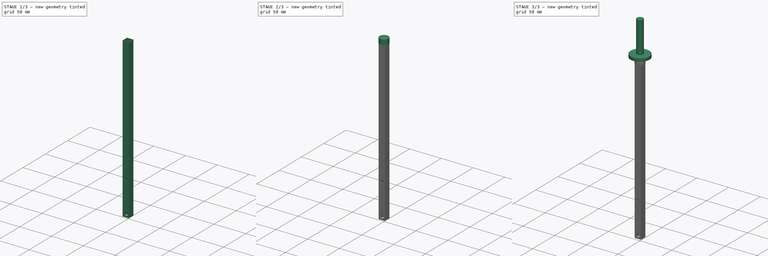
[diagram: build sequence overview — one tinted view per stage of 3, left to right]
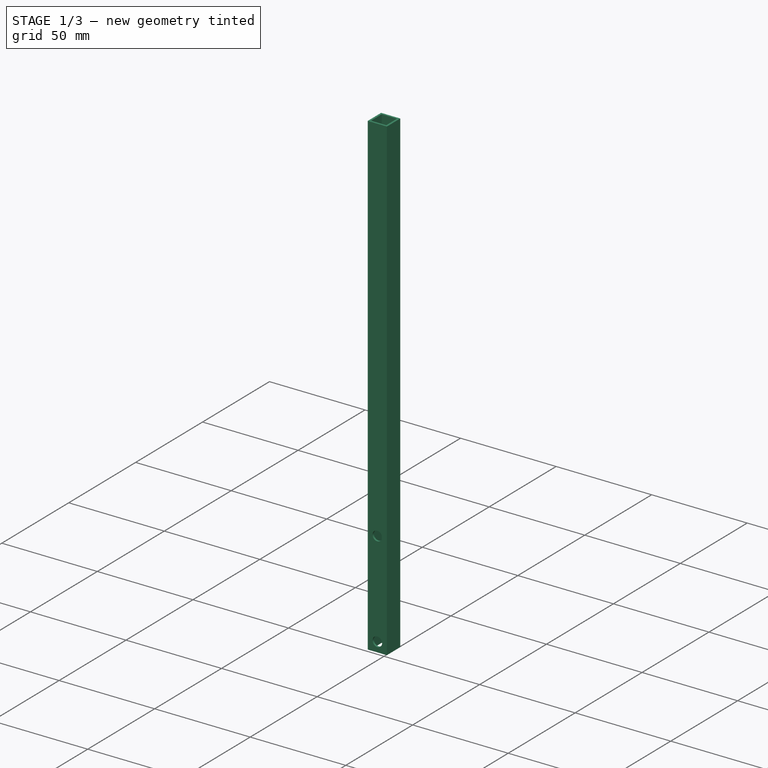
[diagram: stage 1 of 3 — iso view after this stage's code; geometry added in this stage tinted green]
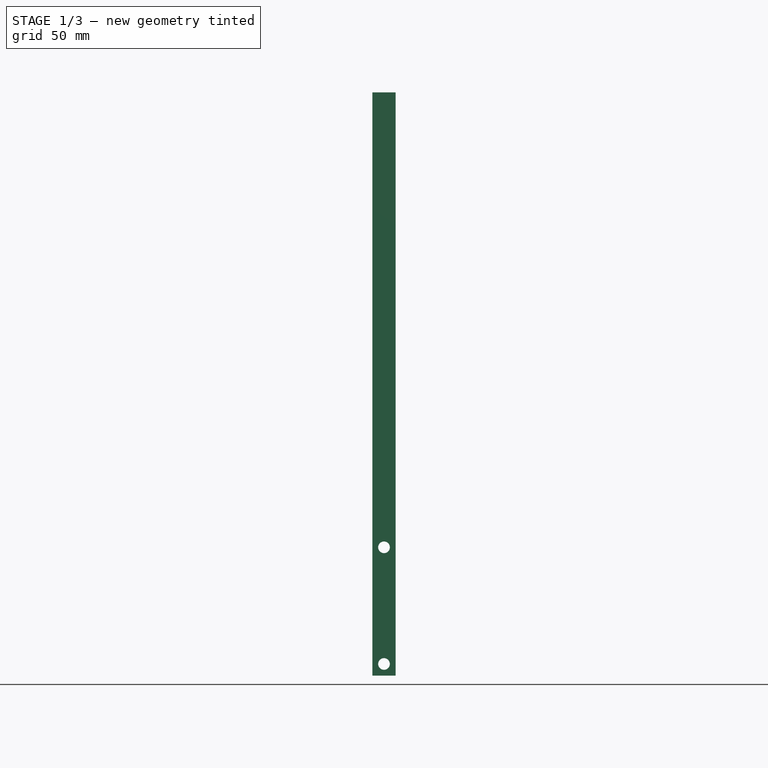
[diagram: stage 1 of 3 — front view after this stage's code; geometry added in this stage tinted green]
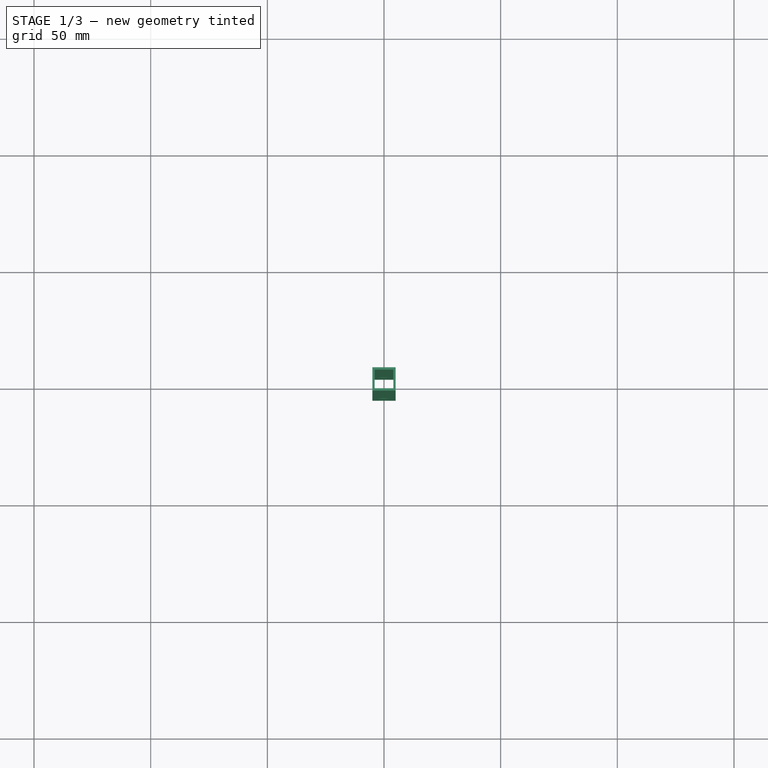
[diagram: stage 1 of 3 — top view after this stage's code; geometry added in this stage tinted green]
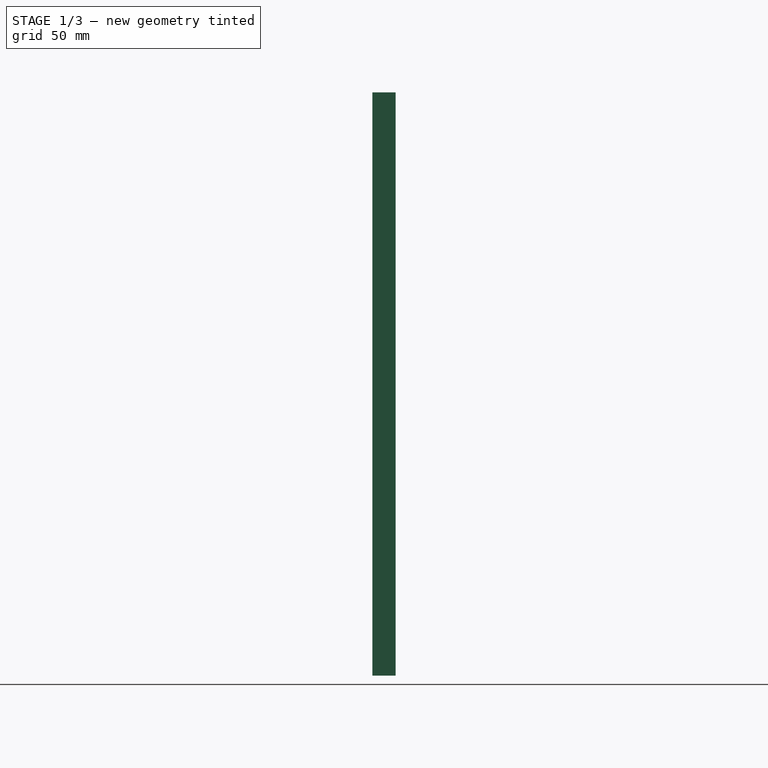
[diagram: stage 1 of 3 — right view after this stage's code; geometry added in this stage tinted green]
FCSTD DOCUMENT  (FreeCAD 0.18R)
Label: femur
License: All rights reserved
LicenseURL: http://en.wikipedia.org/wiki/All_rights_reserved
objects: Sketcher::SketchObject×6, PartDesign::Pad×5, PartDesign::Pocket×1, PartDesign::Body×1
note: 19 computed .brp shape members not serialized (recipe doc carries the construction recipe); baked Part::Feature solids carry a one-line shape summary decoded from their .brp

FEATURE [Sketcher::SketchObject] Sketch
  MapMode = 5
  Support = -> [XY_Plane]
  sketch-geometry (11):
    g0: LineSegment StartX=-4 StartY=4 StartZ=0 EndX=4 EndY=4 EndZ=0
    g1: LineSegment StartX=4 StartY=4 StartZ=0 EndX=4 EndY=-4 EndZ=0
    g2: LineSegment StartX=4 StartY=-4 StartZ=0 EndX=-4 EndY=-4 EndZ=0
    g3: LineSegment StartX=-4 StartY=-4 StartZ=0 EndX=-4 EndY=4 EndZ=0
    g4: LineSegment StartX=-5 StartY=5 StartZ=0 EndX=5 EndY=5 EndZ=0
    g5: LineSegment StartX=5 StartY=5 StartZ=0 EndX=5 EndY=-5 EndZ=0
    g6: LineSegment StartX=5 StartY=-5 StartZ=0 EndX=-5 EndY=-5 EndZ=0
    g7: LineSegment StartX=-5 StartY=-5 StartZ=0 EndX=-5 EndY=5 EndZ=0
    g8: LineSegment [constr] StartX=-4 StartY=4 StartZ=0 EndX=-4e-16 EndY=0 EndZ=0
    g9: LineSegment [constr] StartX=0 StartY=0 StartZ=0 EndX=4 EndY=4 EndZ=0
    g10: LineSegment [constr] StartX=0 StartY=0 StartZ=0 EndX=4 EndY=-4 EndZ=0
  constraints (30):
    c: Coincident(g0,g1)
    c: Coincident(g1,g2)
    c: Coincident(g2,g3)
    c: Coincident(g3,g0)
    c: Horizontal(g0)
    c: Horizontal(g2)
    c: Vertical(g1)
    c: Vertical(g3)
    c: Coincident(g4,g5)
    c: Coincident(g5,g6)
    c: Coincident(g6,g7)
    c: Coincident(g7,g4)
    c: Horizontal(g4)
    c: Horizontal(g6)
    c: Vertical(g5)
    c: Vertical(g7)
    c: Coincident(g8,g0)
    c: Coincident(g8,g10)
    c: Coincident(g8,g-1)
    c: Coincident(g8,g9)
    c: Coincident(g9,g0)
    c: Coincident(g10,g1)
    c: Equal(g10,g9)
    c: Equal(g9,g8)
    c: Equal(g3,g0)
    c: DistanceX(g4,g0) = 1
    c: DistanceY(g0,g4) = 1
    c: DistanceY(g5,g1) = 1
    c: DistanceX(g1,g5) = 1
    c: Distance(g5) = 10
FEATURE [PartDesign::Pad] Pad
  Length = 250
  Length2 = 100
  Profile = -> Sketch
  Type = 0
FEATURE [Sketcher::SketchObject] Sketch001
  ExternalGeometry = -> [Pad]
  MapMode = 5
  Placement = pos=(0,-5,0) rot=(1,0,0;1.5708rad)
  Support = -> [Pad]
  sketch-geometry (2):
    g0: Circle CenterX=0 CenterY=5 CenterZ=0 NormalX=0 NormalY=0 NormalZ=1 AngleXU=0 Radius=2.5
    g1: Circle CenterX=0 CenterY=55 CenterZ=0 NormalX=0 NormalY=0 NormalZ=1 AngleXU=0 Radius=2.5
  constraints (6):
    c: PointOnObject(g0,g-2)
    c: Radius(g0) = 2.5
    c: DistanceY(g-3,g0) = 5
    c: PointOnObject(g1,g-2)
    c: Equal(g1,g0)
    c: DistanceY(g0,g1) = 50
FEATURE [PartDesign::Pocket] Pocket
  BaseFeature = -> Pad
  Length = 5
  Length2 = 100
  Profile = -> Sketch001
  Type = 1
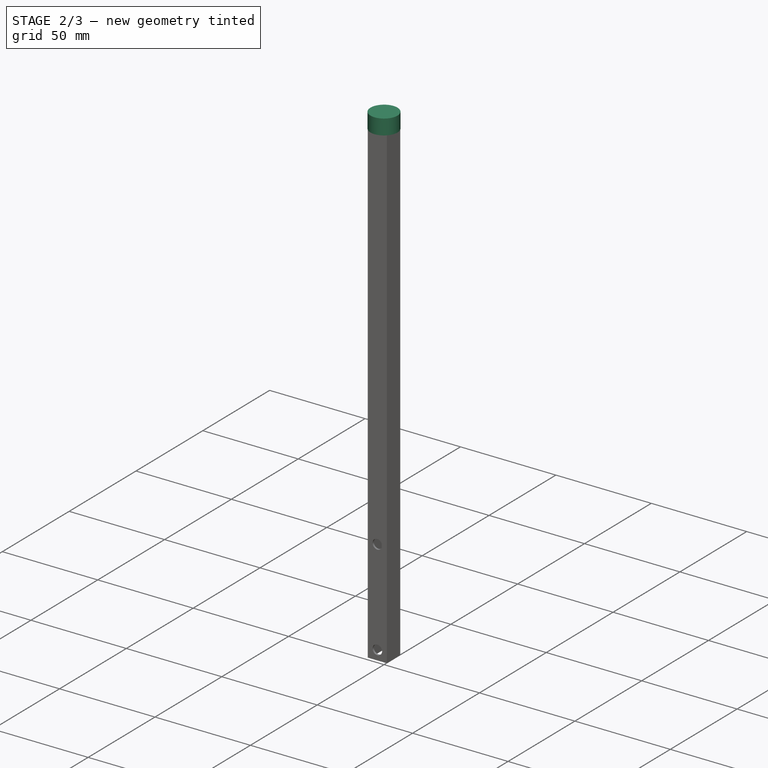
[diagram: stage 2 of 3 — iso view after this stage's code; geometry added in this stage tinted green]
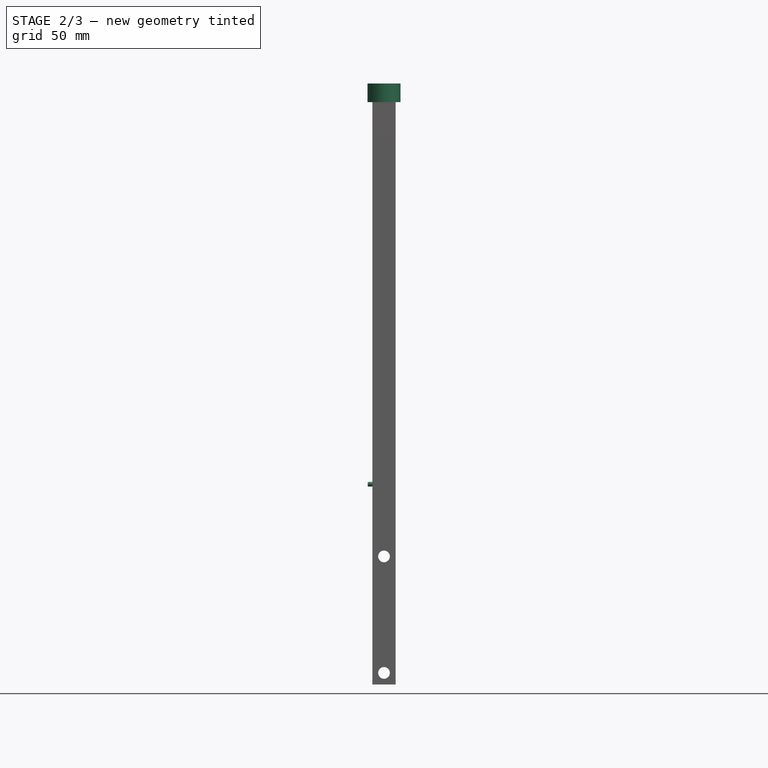
[diagram: stage 2 of 3 — front view after this stage's code; geometry added in this stage tinted green]
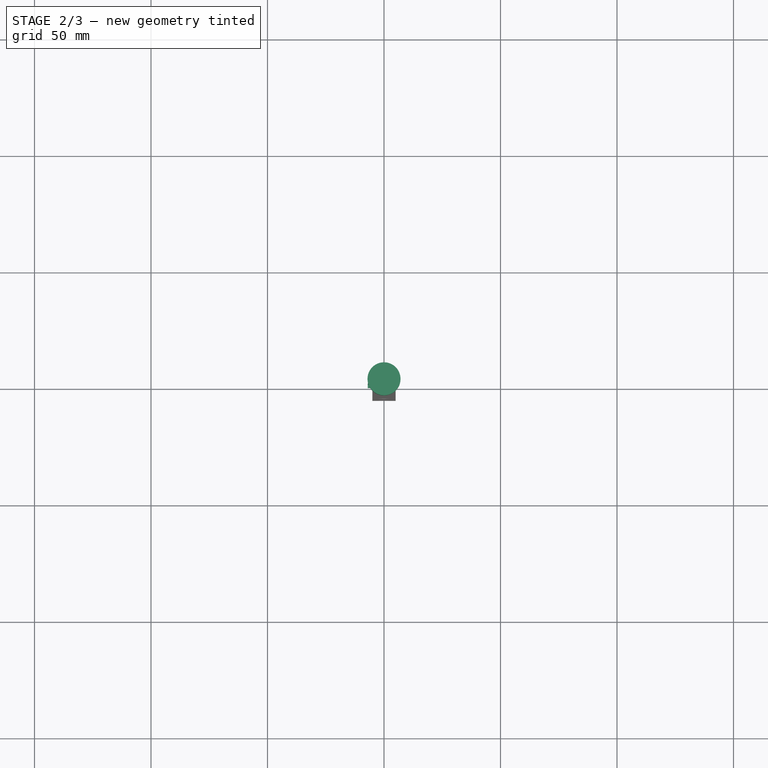
[diagram: stage 2 of 3 — top view after this stage's code; geometry added in this stage tinted green]
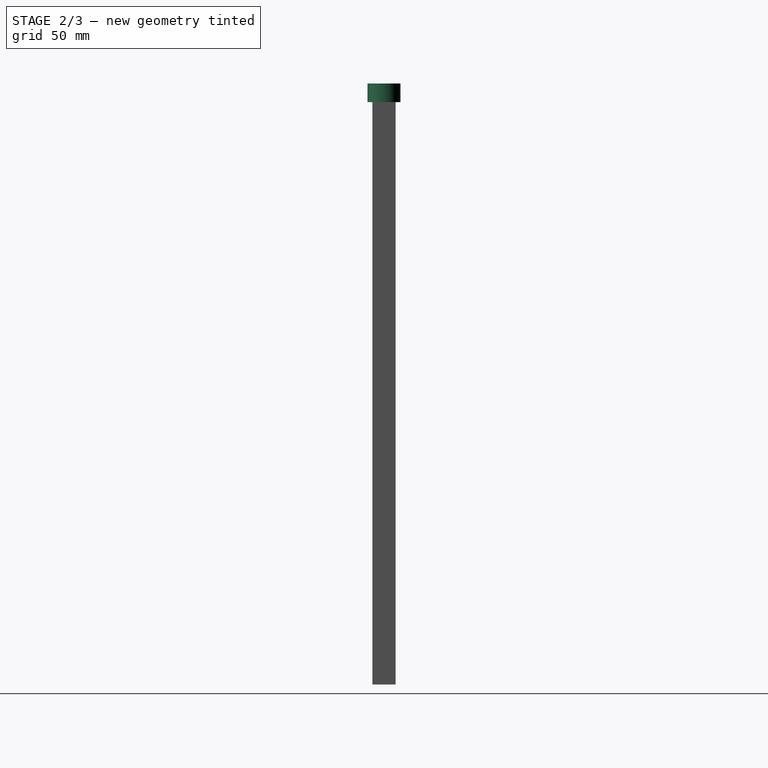
[diagram: stage 2 of 3 — right view after this stage's code; geometry added in this stage tinted green]
FEATURE [Sketcher::SketchObject] Sketch002
  ExternalGeometry = -> [Pocket]
  MapMode = 5
  Placement = pos=(-5,0,0) rot=(0.57735,-0.57735,-0.57735;2.0944rad)
  Support = -> [Pocket]
  sketch-geometry (2):
    g0: LineSegment [constr] StartX=0 StartY=0 StartZ=0 EndX=0 EndY=86 EndZ=0
    g1: Circle CenterX=0 CenterY=86 CenterZ=0 NormalX=0 NormalY=0 NormalZ=1 AngleXU=0 Radius=1
  constraints (5):
    c: Coincident(g0,g-1)
    c: Vertical(g0)
    c: Distance(g0) = 86
    c: Coincident(g1,g0)
    c: Radius(g1) = 1
FEATURE [PartDesign::Pad] Pad001
  BaseFeature = -> Pocket
  Length = 2
  Length2 = 100
  Profile = -> Sketch002
  Type = 0
FEATURE [Sketcher::SketchObject] Sketch003
  ExternalGeometry = -> [Pad001]
  MapMode = 5
  Placement = pos=(0,0,250) rot=(0,0,1;0rad)
  Support = -> [Pad001]
  sketch-geometry (1):
    g0: Circle CenterX=0 CenterY=0 CenterZ=0 NormalX=0 NormalY=0 NormalZ=1 AngleXU=0 Radius=7.07107
  constraints (2):
    c: Coincident(g0,g-1)
    c: PointOnObject(g-3,g0)
FEATURE [PartDesign::Pad] Pad002
  BaseFeature = -> Pad001
  Length = 8
  Length2 = 100
  Profile = -> Sketch003
  Type = 0
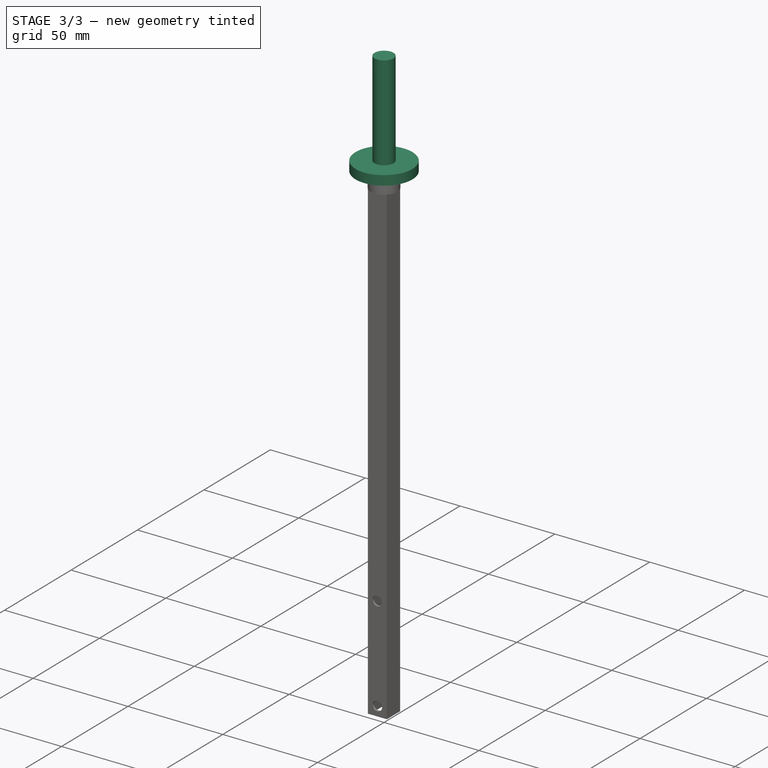
[diagram: stage 3 of 3 — iso view after this stage's code; geometry added in this stage tinted green]
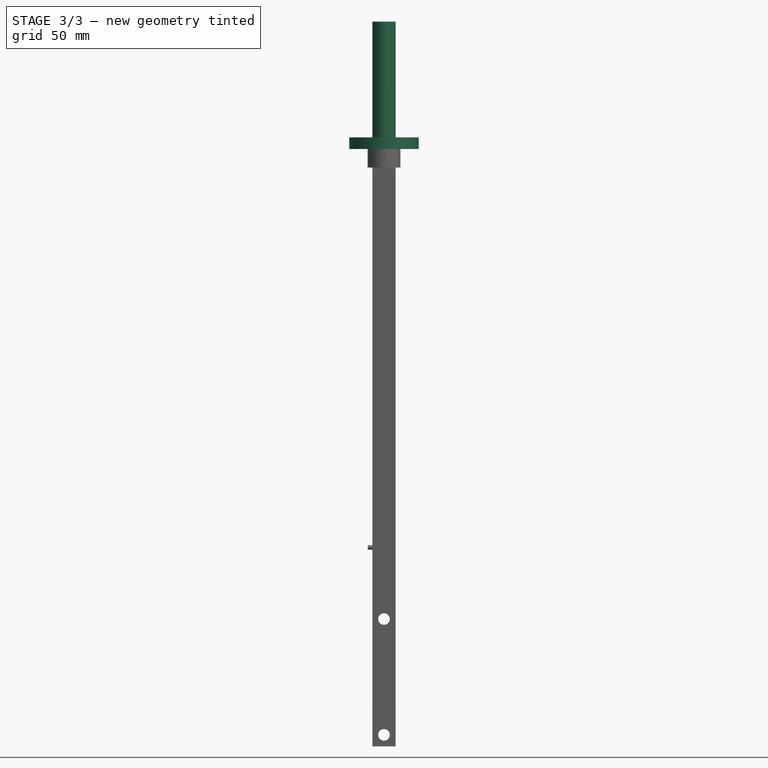
[diagram: stage 3 of 3 — front view after this stage's code; geometry added in this stage tinted green]
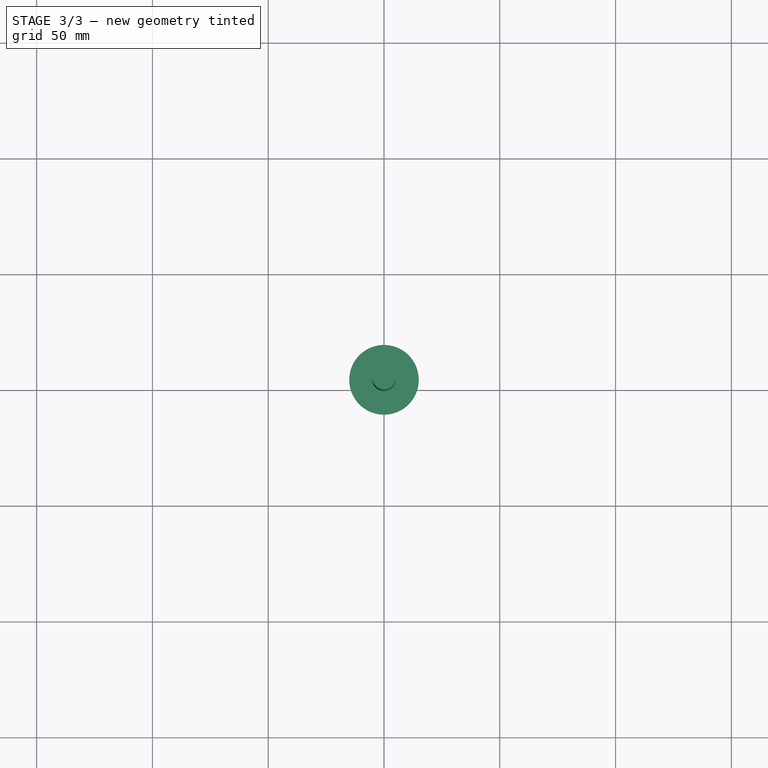
[diagram: stage 3 of 3 — top view after this stage's code; geometry added in this stage tinted green]
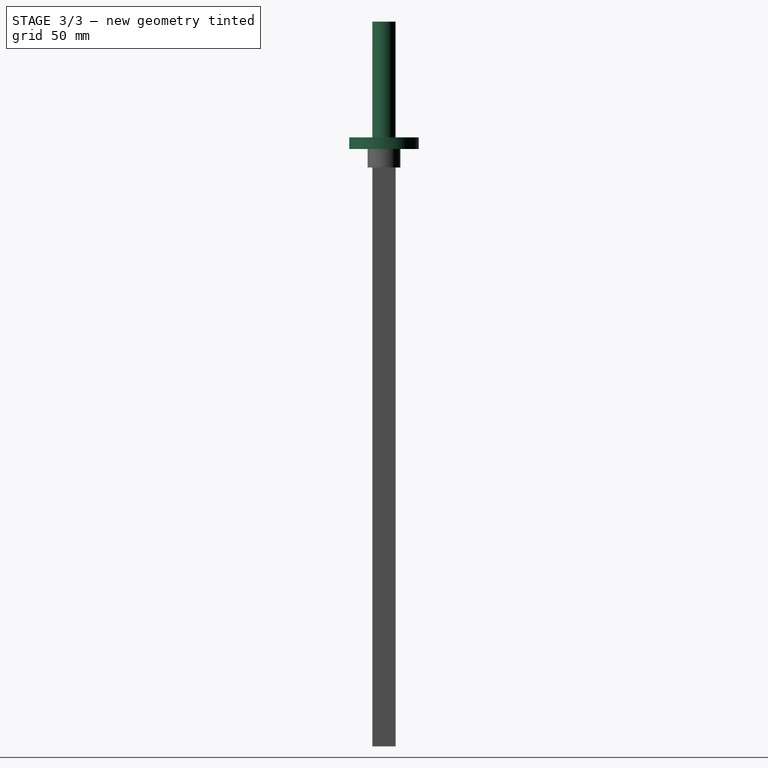
[diagram: stage 3 of 3 — right view after this stage's code; geometry added in this stage tinted green]
FEATURE [Sketcher::SketchObject] Sketch004
  MapMode = 5
  Placement = pos=(0,0,258) rot=(0,0,1;0rad)
  Support = -> [Pad002]
  sketch-geometry (1):
    g0: Circle CenterX=0 CenterY=0 CenterZ=0 NormalX=0 NormalY=0 NormalZ=1 AngleXU=0 Radius=15
  constraints (2):
    c: Coincident(g0,g-1)
    c: Radius(g0) = 15
FEATURE [PartDesign::Pad] Pad003
  BaseFeature = -> Pad002
  Length = 5
  Length2 = 100
  Profile = -> Sketch004
  Type = 0
FEATURE [Sketcher::SketchObject] Sketch005
  MapMode = 5
  Placement = pos=(0,0,263) rot=(0,0,1;0rad)
  Support = -> [Pad003]
  sketch-geometry (1):
    g0: Circle CenterX=0 CenterY=0 CenterZ=0 NormalX=0 NormalY=0 NormalZ=1 AngleXU=0 Radius=5
  constraints (2):
    c: Coincident(g0,g-1)
    c: Radius(g0) = 5
FEATURE [PartDesign::Pad] Pad004
  BaseFeature = -> Pad003
  Length = 50
  Length2 = 100
  Profile = -> Sketch005
  Type = 0
FEATURE [PartDesign::Body] Body
  Group = -> [Sketch,Pad,Sketch001,Pocket,Sketch002,Pad001,Sketch003,Pad002,Sketch004,Pad003,Sketch005,Pad004]
  Origin = -> Origin
  Tip = -> Pad004
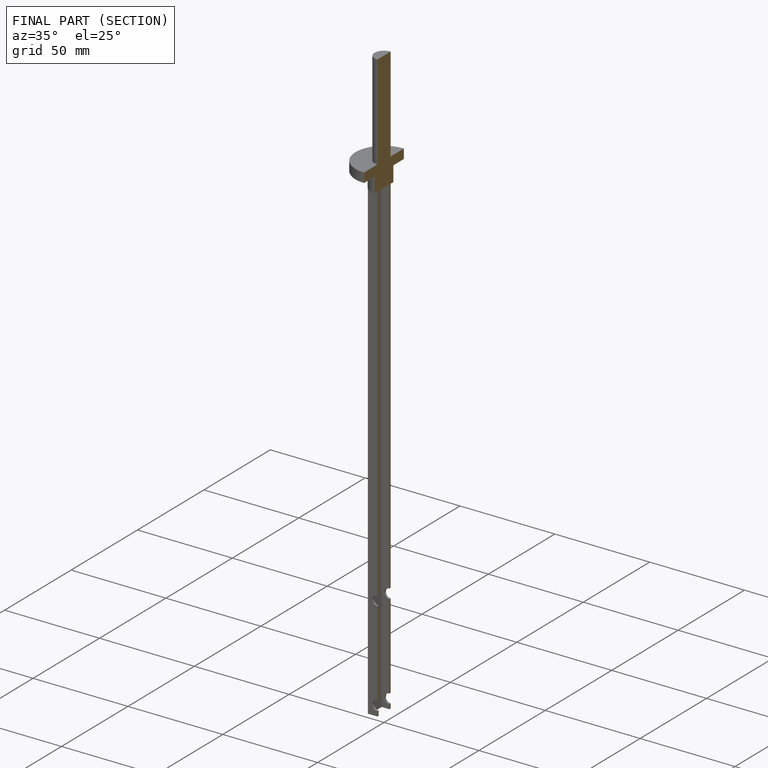
[diagram: finished part — half-section view (interior)]
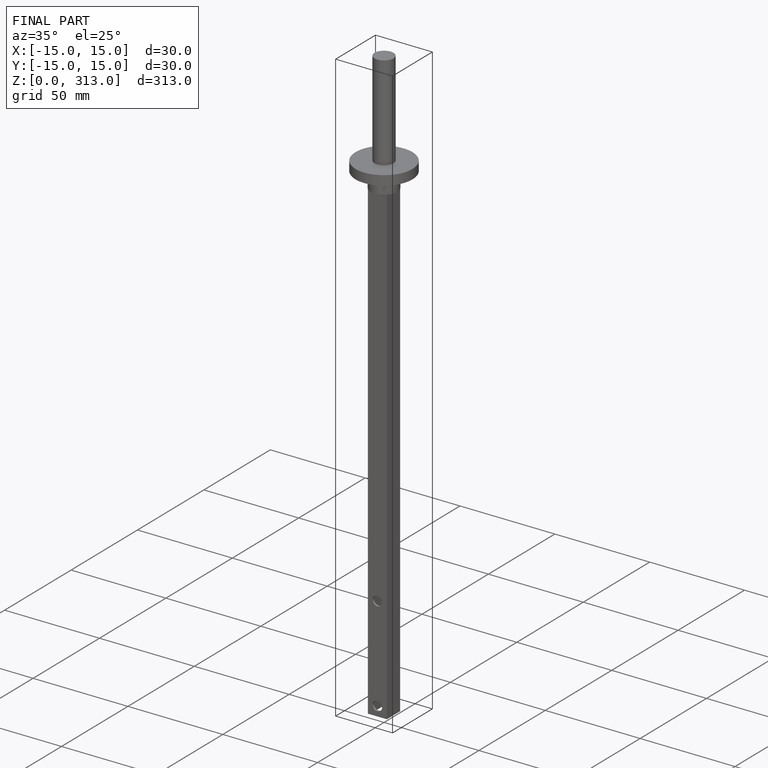
[diagram: finished part — iso view with bounding-box wireframe]
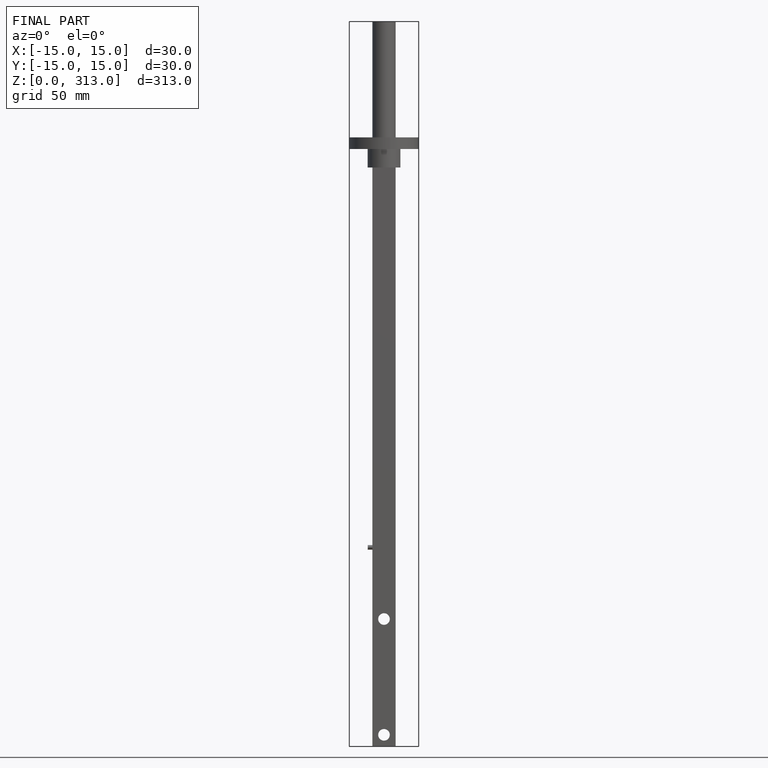
[diagram: finished part — front view with bounding-box wireframe]
